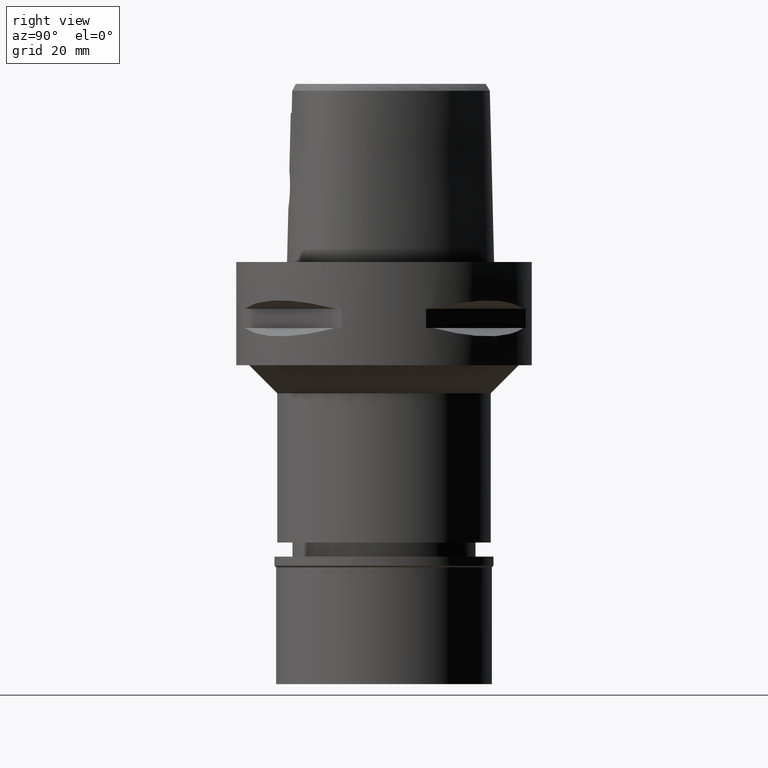
[diagram: clean part render]
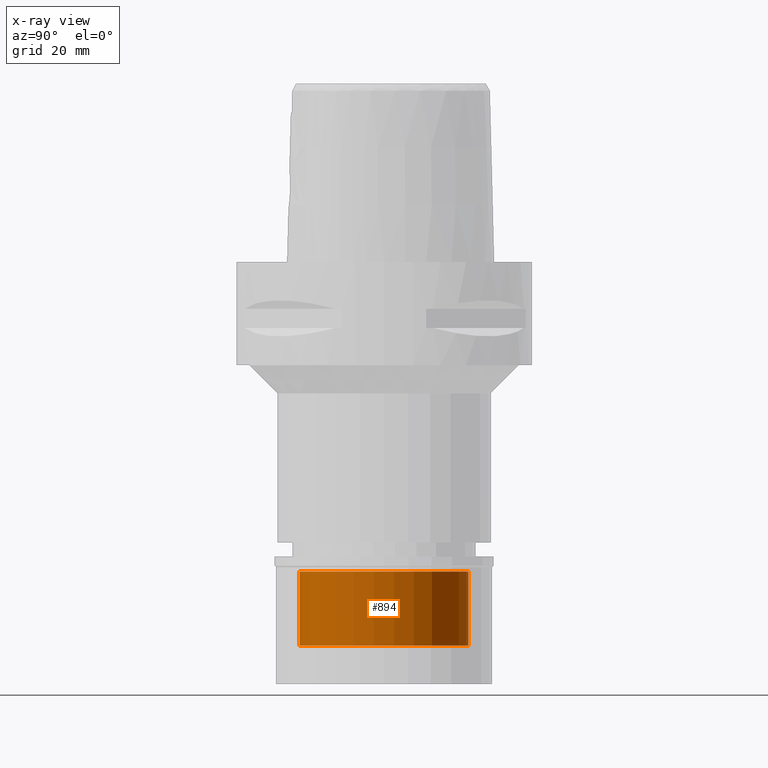
[diagram: x-ray — body ghosted, one internal face saturated and labeled with its STEP entity id]
A machine part, right view, then the same camera in x-ray: the body is ghosted and one INTERNAL B-rep face — a face not visible from any outside direction — is saturated and labeled: STEP entity #894.
In plain terms, the highlighted cylindrical surface (partial cylindrical patch) has radius 18 mm, axis along (0, 0, -1).
Its self-contained STEP definition (entity closure, byte-faithful):
#43 = CARTESIAN_POINT ( 'NONE',  ( 0.0000000000000000000, 18.00000000000000000, -19.00000000000000000 ) ) ;
#70 = ORIENTED_EDGE ( 'NONE', *, *, #1202, .F. ) ;
#123 = DIRECTION ( 'NONE',  ( 0.0000000000000000000, -1.000000000000000000, 0.0000000000000000000 ) ) ;
#125 = CIRCLE ( 'NONE', #3978, 18.00000000000000000 ) ;
#266 = VECTOR ( 'NONE', #3370, 1000.000000000000000 ) ;
#338 = EDGE_CURVE ( 'NONE', #4338, #3571, #125, .T. ) ;
#479 = CARTESIAN_POINT ( 'NONE',  ( 0.0000000000000000000, 0.0000000000000000000, -19.00000000000000000 ) ) ;
#488 = EDGE_CURVE ( 'NONE', #4292, #3273, #1589, .T. ) ;
#522 = EDGE_CURVE ( 'NONE', #3273, #4338, #3759, .T. ) ;
#684 = DIRECTION ( 'NONE',  ( 0.0000000000000000000, 1.000000000000000000, 0.0000000000000000000 ) ) ;
#757 = AXIS2_PLACEMENT_3D ( 'NONE', #3580, #4666, #123 ) ;
#894 = ADVANCED_FACE ( 'NONE', ( #1621 ), #2059, .F. ) ;
#1072 = CARTESIAN_POINT ( 'NONE',  ( 0.0000000000000000000, 18.00000000000000000, -19.00000000000000000 ) ) ;
#1202 = EDGE_CURVE ( 'NONE', #4292, #3571, #4400, .T. ) ;
#1589 = CIRCLE ( 'NONE', #4692, 18.00000000000000000 ) ;
#1621 = FACE_OUTER_BOUND ( 'NONE', #4245, .T. ) ;
#1657 = DIRECTION ( 'NONE',  ( 0.0000000000000000000, -1.000000000000000000, 0.0000000000000000000 ) ) ;
#1882 = ORIENTED_EDGE ( 'NONE', *, *, #522, .T. ) ;
#2059 = CYLINDRICAL_SURFACE ( 'NONE', #757, 18.00000000000000000 ) ;
#2158 = VECTOR ( 'NONE', #2586, 1000.000000000000000 ) ;
#2438 = CARTESIAN_POINT ( 'NONE',  ( 0.0000000000000000000, 18.00000000000000000, -3.200000000000000178 ) ) ;
#2586 = DIRECTION ( 'NONE',  ( 0.0000000000000000000, 0.0000000000000000000, 1.000000000000000000 ) ) ;
#2800 = ORIENTED_EDGE ( 'NONE', *, *, #338, .T. ) ;
#3219 = DIRECTION ( 'NONE',  ( 0.0000000000000000000, 0.0000000000000000000, 1.000000000000000000 ) ) ;
#3273 = VERTEX_POINT ( 'NONE', #3900 ) ;
#3370 = DIRECTION ( 'NONE',  ( 0.0000000000000000000, 0.0000000000000000000, 1.000000000000000000 ) ) ;
#3563 = DIRECTION ( 'NONE',  ( 0.0000000000000000000, 0.0000000000000000000, -1.000000000000000000 ) ) ;
#3571 = VERTEX_POINT ( 'NONE', #2438 ) ;
#3580 = CARTESIAN_POINT ( 'NONE',  ( 0.0000000000000000000, 0.0000000000000000000, 0.0000000000000000000 ) ) ;
#3617 = ORIENTED_EDGE ( 'NONE', *, *, #488, .T. ) ;
#3759 = LINE ( 'NONE', #4048, #2158 ) ;
#3900 = CARTESIAN_POINT ( 'NONE',  ( 0.0000000000000000000, -18.00000000000000000, -19.00000000000000000 ) ) ;
#3978 = AXIS2_PLACEMENT_3D ( 'NONE', #4306, #3219, #1657 ) ;
#4048 = CARTESIAN_POINT ( 'NONE',  ( 0.0000000000000000000, -18.00000000000000000, -19.00000000000000000 ) ) ;
#4245 = EDGE_LOOP ( 'NONE', ( #3617, #1882, #2800, #70 ) ) ;
#4292 = VERTEX_POINT ( 'NONE', #43 ) ;
#4306 = CARTESIAN_POINT ( 'NONE',  ( 0.0000000000000000000, 0.0000000000000000000, -3.200000000000000178 ) ) ;
#4338 = VERTEX_POINT ( 'NONE', #4657 ) ;
#4400 = LINE ( 'NONE', #1072, #266 ) ;
#4657 = CARTESIAN_POINT ( 'NONE',  ( 0.0000000000000000000, -18.00000000000000000, -3.200000000000000178 ) ) ;
#4666 = DIRECTION ( 'NONE',  ( 0.0000000000000000000, 0.0000000000000000000, -1.000000000000000000 ) ) ;
#4692 = AXIS2_PLACEMENT_3D ( 'NONE', #479, #3563, #684 ) ;